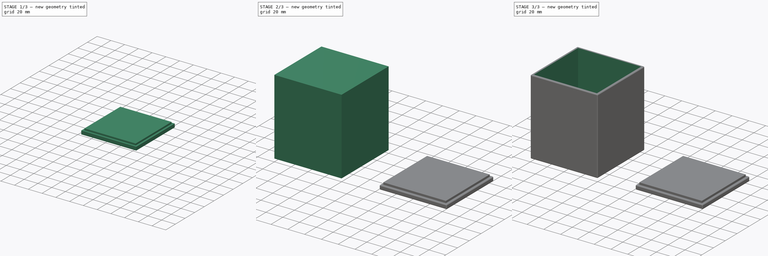
[diagram: build sequence overview — one tinted view per stage of 3, left to right]
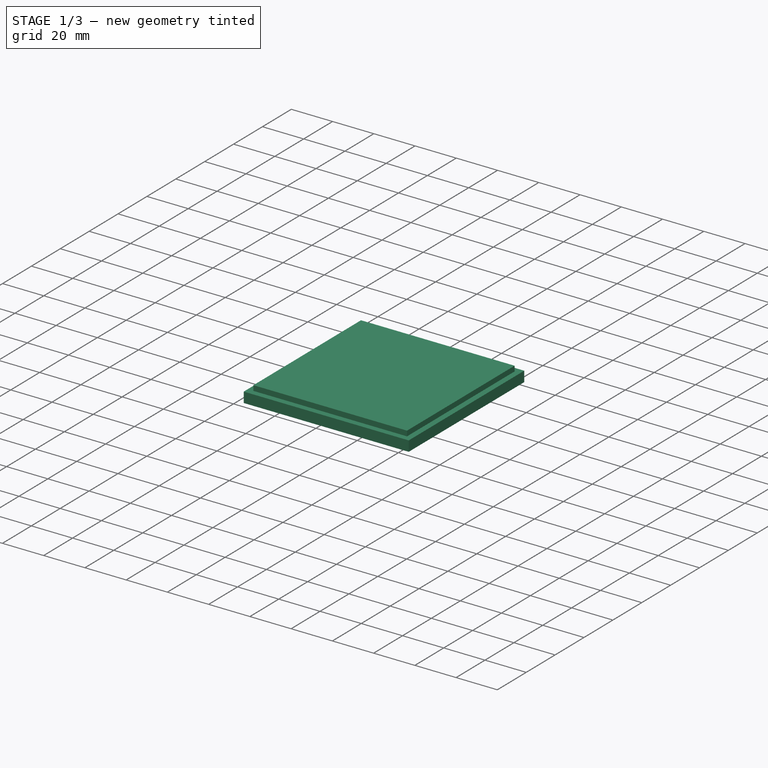
[diagram: stage 1 of 3 — iso view after this stage's code; geometry added in this stage tinted green]
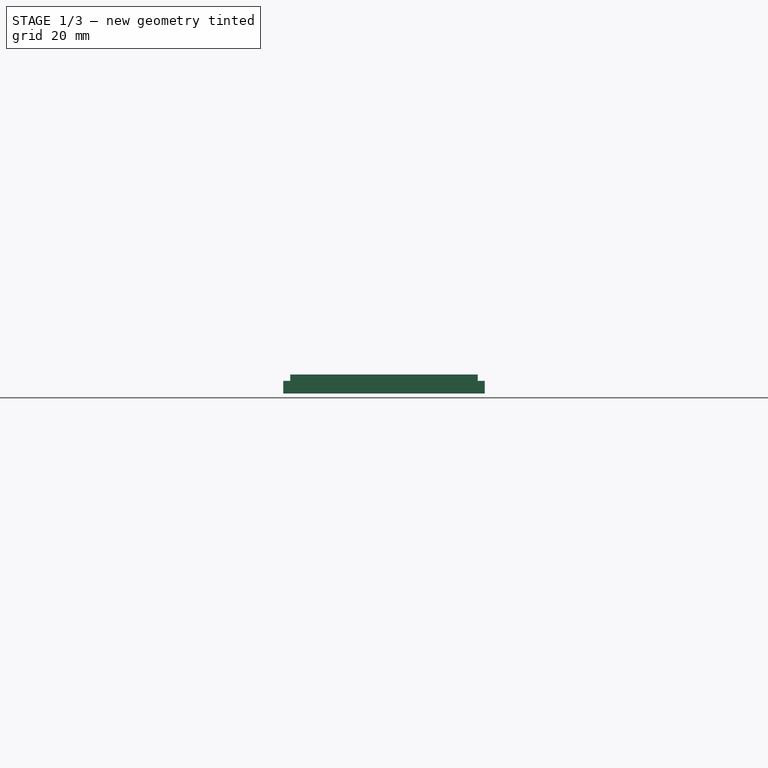
[diagram: stage 1 of 3 — front view after this stage's code; geometry added in this stage tinted green]
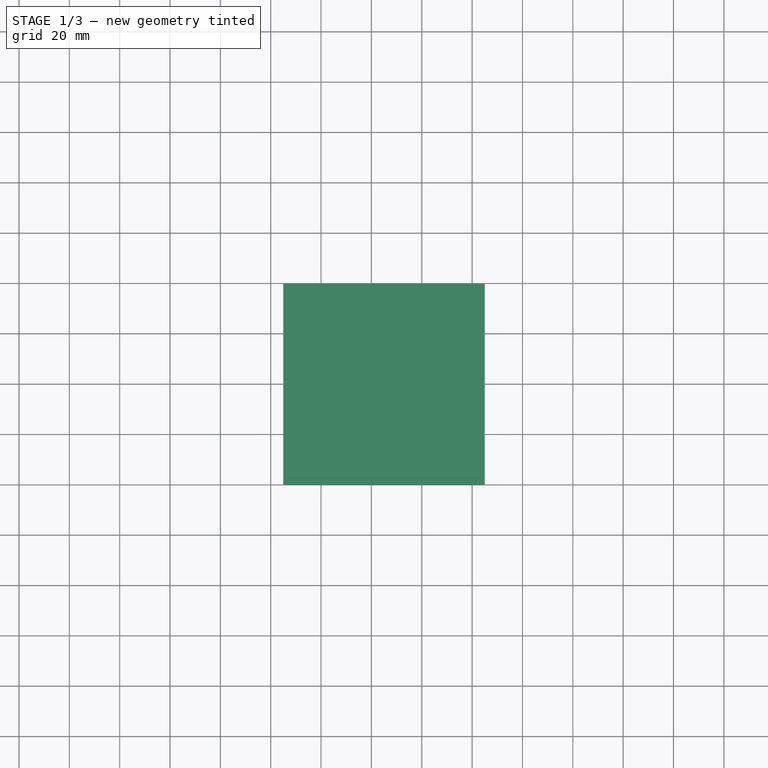
[diagram: stage 1 of 3 — top view after this stage's code; geometry added in this stage tinted green]
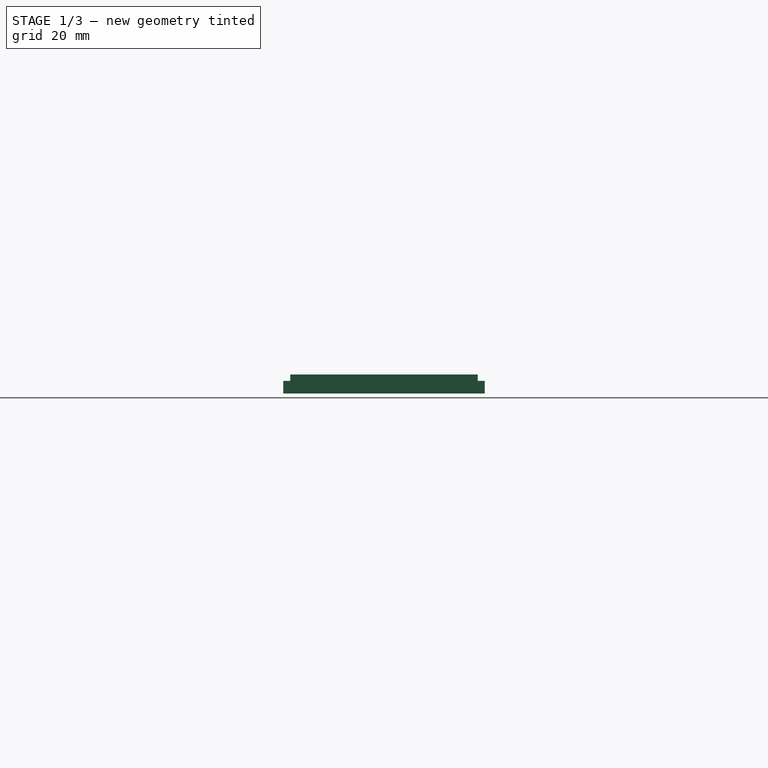
[diagram: stage 1 of 3 — right view after this stage's code; geometry added in this stage tinted green]
FCSTD DOCUMENT  (FreeCAD 1.0R39285 (Git))
Label: SnowGlobeBox
License: All rights reserved
LicenseURL: https://en.wikipedia.org/wiki/All_rights_reserved
objects: Sketcher::SketchObject×4, PartDesign::Pad×3, PartDesign::Fillet×2, PartDesign::Body×2, PartDesign::Pocket×1
note: 28 computed .brp shape members not serialized (recipe doc carries the construction recipe); baked Part::Feature solids carry a one-line shape summary decoded from their .brp

FEATURE [PartDesign::Body] Body  label="SGBBody"
  AllowCompound = false
  Group = -> [Sketch,Pad,Sketch001,Pocket,Fillet]
  Origin = -> Origin
  Tip = -> Fillet
FEATURE [Sketcher::SketchObject] Sketch002
  ArcFitTolerance = 1e-06
  AttachmentSupport = -> [XY_Plane001]
  FullyConstrained = true
  MakeInternals = false
  MapMode = 5
  sketch-geometry (5):
    g0: LineSegment StartX=85 StartY=40 StartZ=0 EndX=85 EndY=-40 EndZ=0
    g1: LineSegment StartX=85 StartY=-40 StartZ=0 EndX=165 EndY=-40 EndZ=0
    g2: LineSegment StartX=165 StartY=-40 StartZ=0 EndX=165 EndY=40 EndZ=0
    g3: LineSegment StartX=165 StartY=40 StartZ=0 EndX=85 EndY=40 EndZ=0
    g4: GeomPoint [constr] X=125 Y=0 Z=0
  constraints (13):
    c: Coincident(g0,g1)
    c: Coincident(g1,g2)
    c: Coincident(g2,g3)
    c: Coincident(g3,g0)
    c: Vertical(g0)
    c: Vertical(g2)
    c: Horizontal(g1)
    c: Horizontal(g3)
    c: Symmetric(g2,g0,g4)
    c: PointOnObject(g4,g-1)
    c: DistanceX(g3,g3) = 80
    c: DistanceY(g2,g2) = 80
    c: DistanceX(g-1,g4) = 125
FEATURE [PartDesign::Pad] Pad001
  Direction = (0,0,1)
  Length = 5
  Length2 = 10
  Profile = -> Sketch002
  ReferenceAxis = -> Sketch002 [N_Axis]
  Refine = true
  Suppressed = false
  Type = 0
FEATURE [Sketcher::SketchObject] Sketch003
  ArcFitTolerance = 1e-06
  AttachmentSupport = -> [Pad001]
  ExternalGeometry = -> [Pad001]
  FullyConstrained = true
  MakeInternals = false
  MapMode = 5
  Placement = pos=(0,0,5) rot=(0,0,1;0rad)
  sketch-geometry (5):
    g0: LineSegment StartX=87.75 StartY=37.25 StartZ=0 EndX=87.75 EndY=-37.25 EndZ=0
    g1: LineSegment StartX=87.75 StartY=-37.25 StartZ=0 EndX=162.25 EndY=-37.25 EndZ=0
    g2: LineSegment StartX=162.25 StartY=-37.25 StartZ=0 EndX=162.25 EndY=37.25 EndZ=0
    g3: LineSegment StartX=162.25 StartY=37.25 StartZ=0 EndX=87.75 EndY=37.25 EndZ=0
    g4: GeomPoint [constr] X=125 Y=-6.2e-15 Z=0
  constraints (13):
    c: Coincident(g0,g1)
    c: Coincident(g1,g2)
    c: Coincident(g2,g3)
    c: Coincident(g3,g0)
    c: Vertical(g0)
    c: Vertical(g2)
    c: Horizontal(g1)
    c: Horizontal(g3)
    c: Symmetric(g2,g0,g4)
    c: DistanceX(g-4,g0) = 2.75
    c: DistanceY(g0,g-4) = 2.75
    c: DistanceY(g-6,g1) = 2.75
    c: DistanceX(g1,g-6) = 2.75
FEATURE [PartDesign::Pad] Pad002
  BaseFeature = -> Pad001
  Direction = (0,0,1)
  Length = 2.5
  Length2 = 10
  Profile = -> Sketch003
  ReferenceAxis = -> Sketch003 [N_Axis]
  Refine = true
  Suppressed = false
  Type = 0
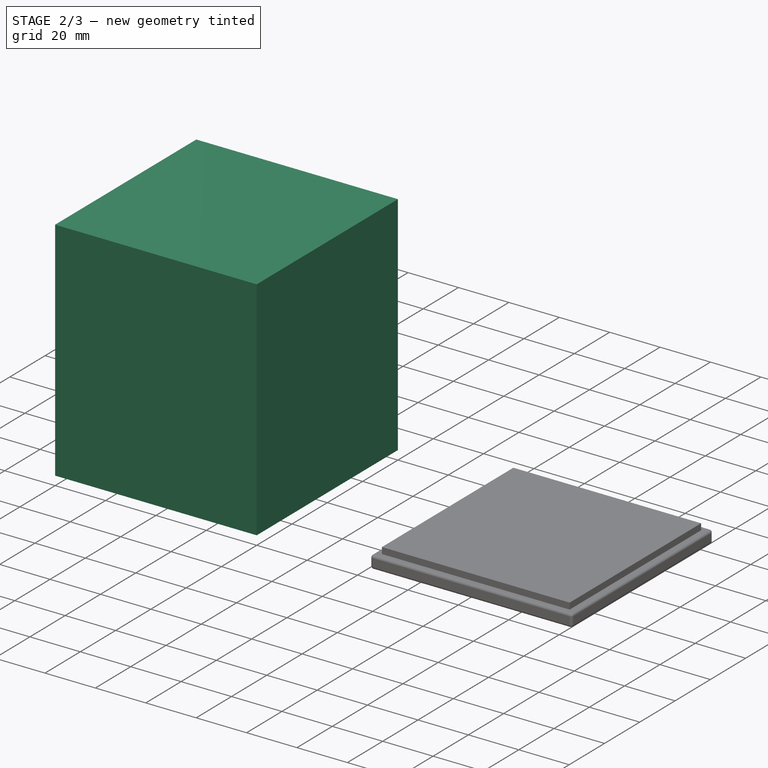
[diagram: stage 2 of 3 — iso view after this stage's code; geometry added in this stage tinted green]
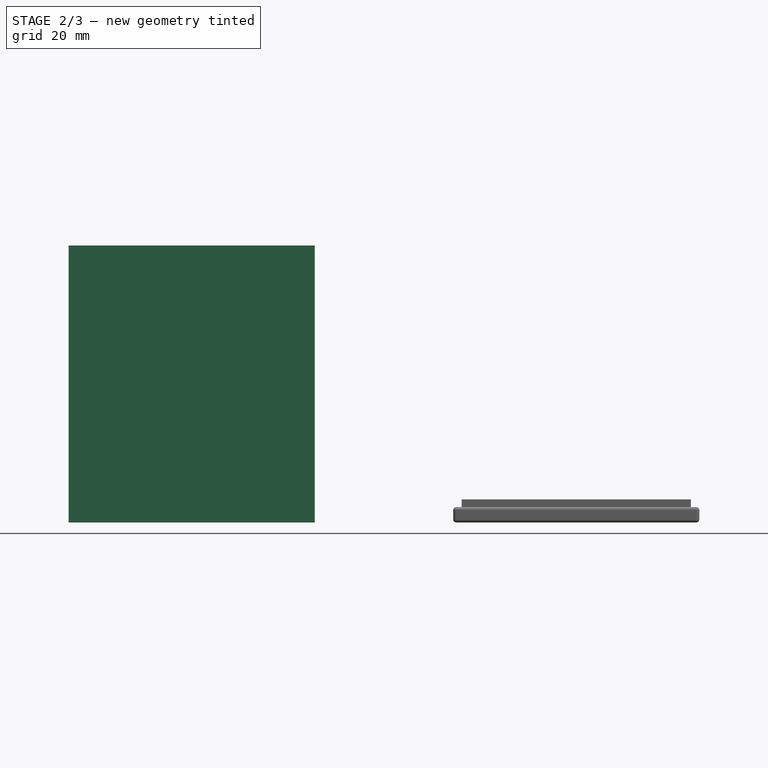
[diagram: stage 2 of 3 — front view after this stage's code; geometry added in this stage tinted green]
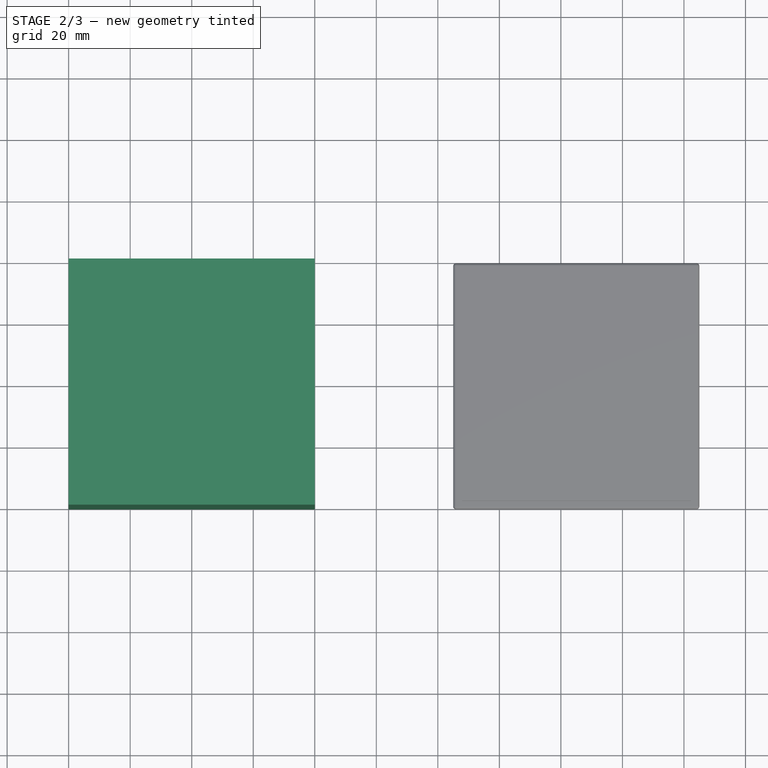
[diagram: stage 2 of 3 — top view after this stage's code; geometry added in this stage tinted green]
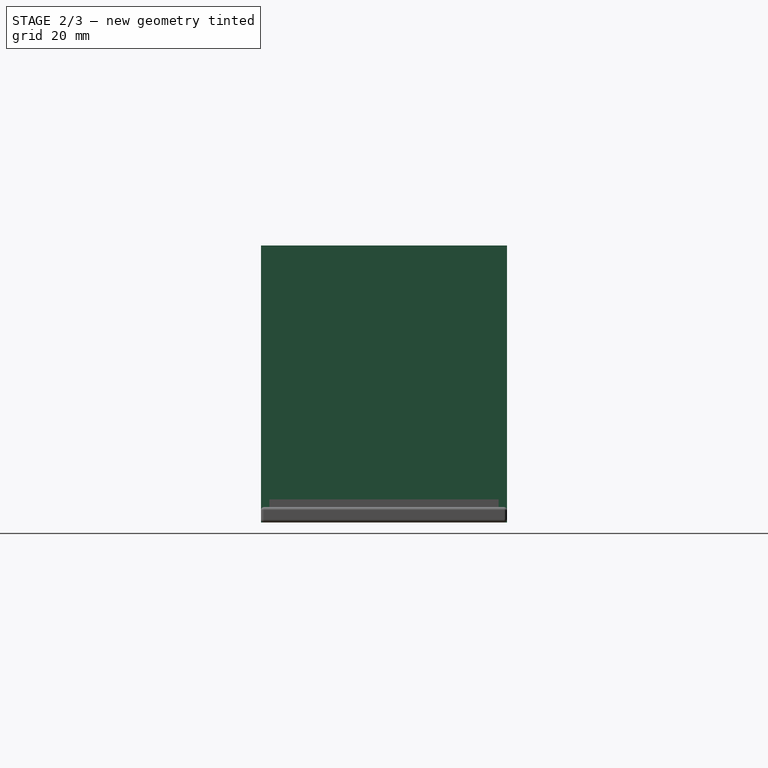
[diagram: stage 2 of 3 — right view after this stage's code; geometry added in this stage tinted green]
FEATURE [Sketcher::SketchObject] Sketch
  ArcFitTolerance = 1e-06
  AttachmentSupport = -> [XY_Plane]
  FullyConstrained = true
  MakeInternals = false
  MapMode = 5
  sketch-geometry (5):
    g0: LineSegment StartX=-40 StartY=40 StartZ=0 EndX=-40 EndY=-40 EndZ=0
    g1: LineSegment StartX=-40 StartY=-40 StartZ=0 EndX=40 EndY=-40 EndZ=0
    g2: LineSegment StartX=40 StartY=-40 StartZ=0 EndX=40 EndY=40 EndZ=0
    g3: LineSegment StartX=40 StartY=40 StartZ=0 EndX=-40 EndY=40 EndZ=0
    g4: GeomPoint [constr] X=-3e-16 Y=-5e-16 Z=0
  constraints (12):
    c: Coincident(g0,g1)
    c: Coincident(g1,g2)
    c: Coincident(g2,g3)
    c: Coincident(g3,g0)
    c: Vertical(g0)
    c: Vertical(g2)
    c: Horizontal(g1)
    c: Horizontal(g3)
    c: Symmetric(g2,g0,g4)
    c: Coincident(g4,g-1)
    c: DistanceX(g3,g3) = 80
    c: DistanceY(g2,g2) = 80
FEATURE [PartDesign::Pad] Pad
  Direction = (0,0,1)
  Length = 90
  Length2 = 10
  Profile = -> Sketch
  ReferenceAxis = -> Sketch [N_Axis]
  Refine = true
  Suppressed = false
  Type = 0
FEATURE [PartDesign::Fillet] Fillet001
  Base = -> Pad002 [Edge10,Edge4,Edge12,Edge2,Edge9,Edge8,Edge11,Edge5,Edge7,Edge6,Edge1,Edge3]
  BaseFeature = -> Pad002
  Radius = 1
  Refine = true
  SupportTransform = false
  Suppressed = false
  UseAllEdges = false
FEATURE [PartDesign::Body] Body001  label="SGBTop"
  AllowCompound = false
  Group = -> [Sketch002,Pad001,Sketch003,Pad002,Fillet001]
  Origin = -> Origin001
  Tip = -> Fillet001
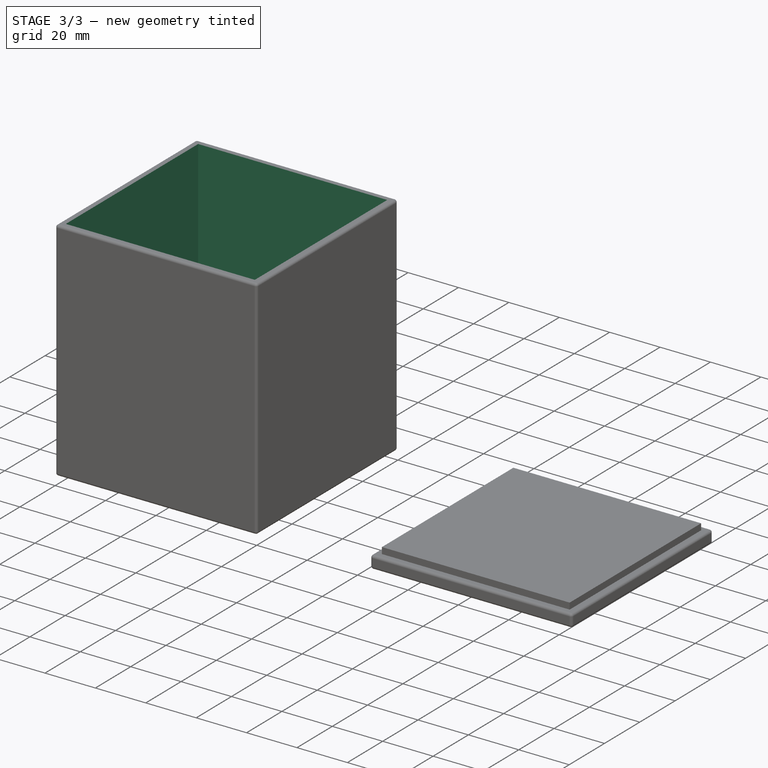
[diagram: stage 3 of 3 — iso view after this stage's code; geometry added in this stage tinted green]
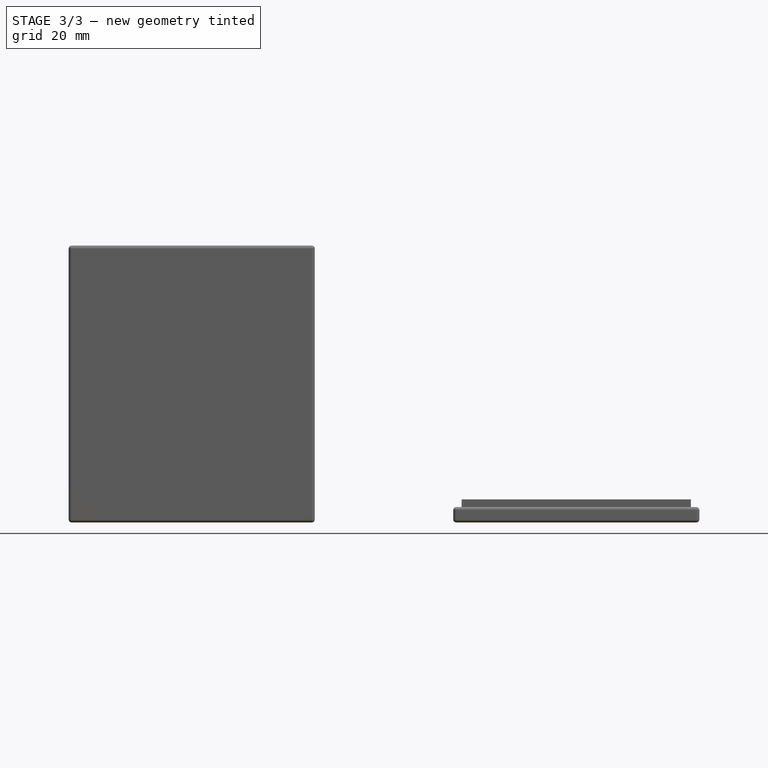
[diagram: stage 3 of 3 — front view after this stage's code; geometry added in this stage tinted green]
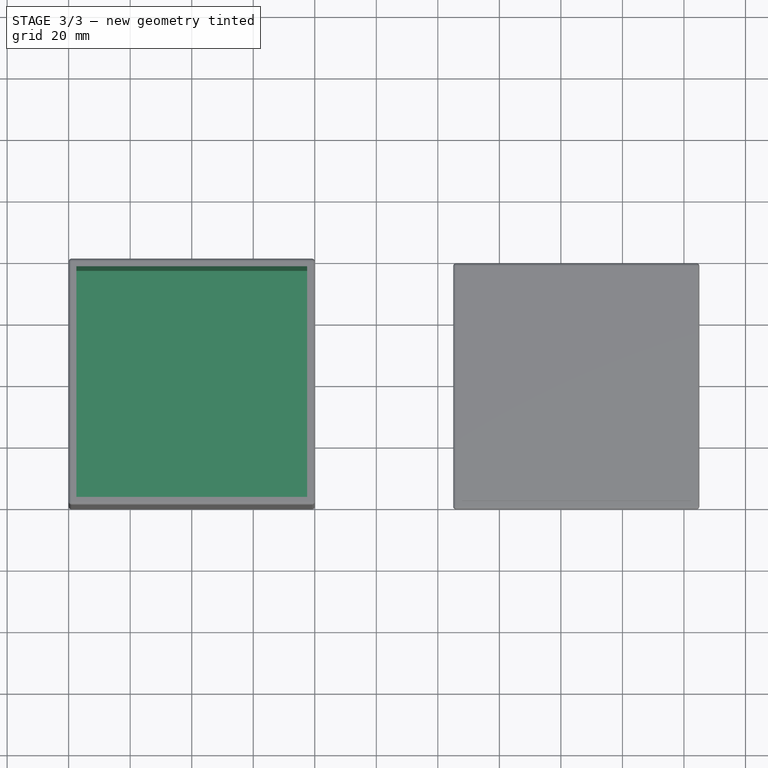
[diagram: stage 3 of 3 — top view after this stage's code; geometry added in this stage tinted green]
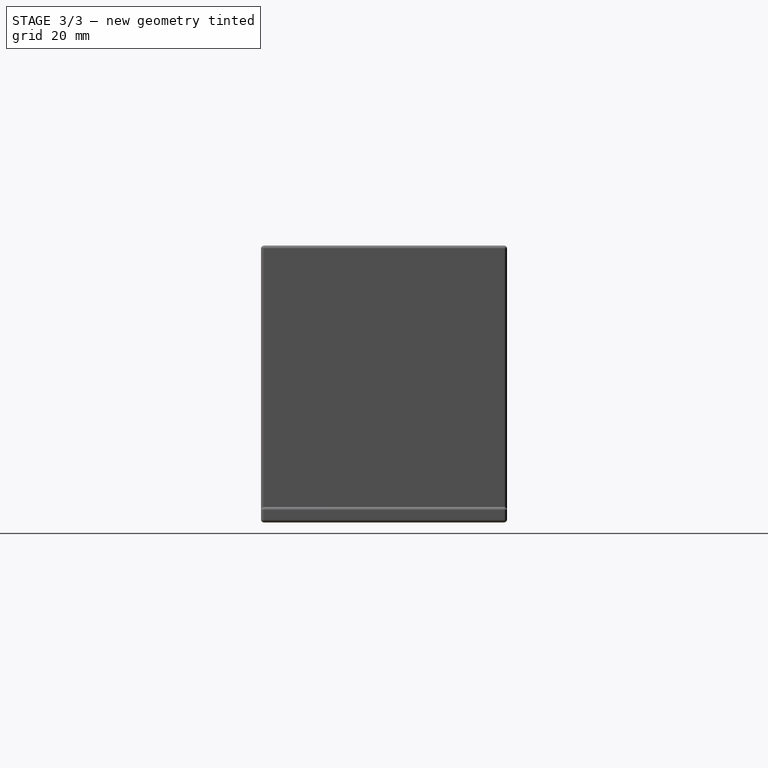
[diagram: stage 3 of 3 — right view after this stage's code; geometry added in this stage tinted green]
FEATURE [Sketcher::SketchObject] Sketch001
  ArcFitTolerance = 1e-06
  AttachmentSupport = -> [Pad]
  FullyConstrained = true
  MakeInternals = false
  MapMode = 5
  Placement = pos=(0,0,90) rot=(0,0,1;0rad)
  sketch-geometry (5):
    g0: LineSegment StartX=-37.5 StartY=37.5 StartZ=0 EndX=-37.5 EndY=-37.5 EndZ=0
    g1: LineSegment StartX=-37.5 StartY=-37.5 StartZ=0 EndX=37.5 EndY=-37.5 EndZ=0
    g2: LineSegment StartX=37.5 StartY=-37.5 StartZ=0 EndX=37.5 EndY=37.5 EndZ=0
    g3: LineSegment StartX=37.5 StartY=37.5 StartZ=0 EndX=-37.5 EndY=37.5 EndZ=0
    g4: GeomPoint [constr] X=0 Y=0 Z=0
  constraints (12):
    c: Coincident(g0,g1)
    c: Coincident(g1,g2)
    c: Coincident(g2,g3)
    c: Coincident(g3,g0)
    c: Vertical(g0)
    c: Vertical(g2)
    c: Horizontal(g1)
    c: Horizontal(g3)
    c: Symmetric(g2,g0,g4)
    c: Coincident(g4,g-1)
    c: DistanceX(g3,g3) = 75
    c: DistanceY(g2,g2) = 75
FEATURE [PartDesign::Pocket] Pocket
  BaseFeature = -> Pad
  Direction = (0,0,-1)
  Length = 87.5
  Length2 = 5
  Profile = -> Sketch001
  ReferenceAxis = -> Sketch001 [N_Axis]
  Refine = true
  Suppressed = false
  Type = 0
FEATURE [PartDesign::Fillet] Fillet
  Base = -> Pocket [Edge2,Edge8,Edge5,Edge1,Edge9,Edge3,Edge11,Edge6,Edge4,Edge10,Edge12,Edge7]
  BaseFeature = -> Pocket
  Radius = 1
  Refine = true
  SupportTransform = false
  Suppressed = false
  UseAllEdges = false
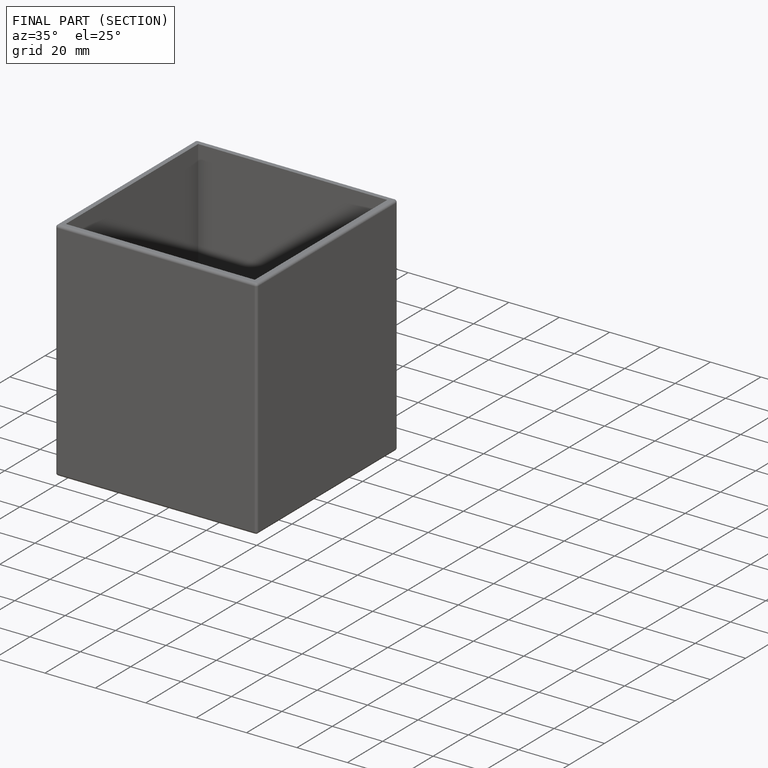
[diagram: finished part — half-section view (interior)]
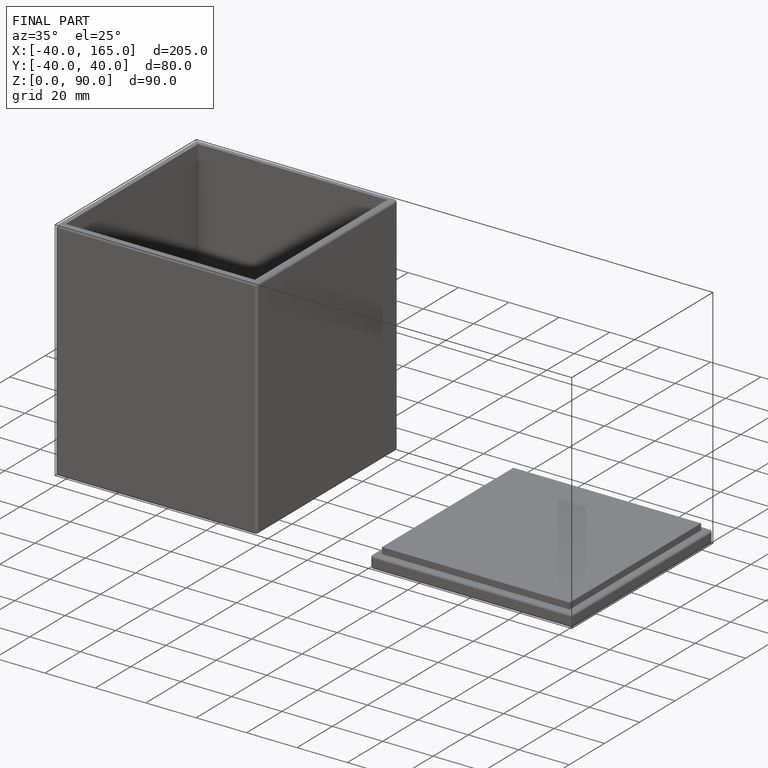
[diagram: finished part — iso view with bounding-box wireframe]
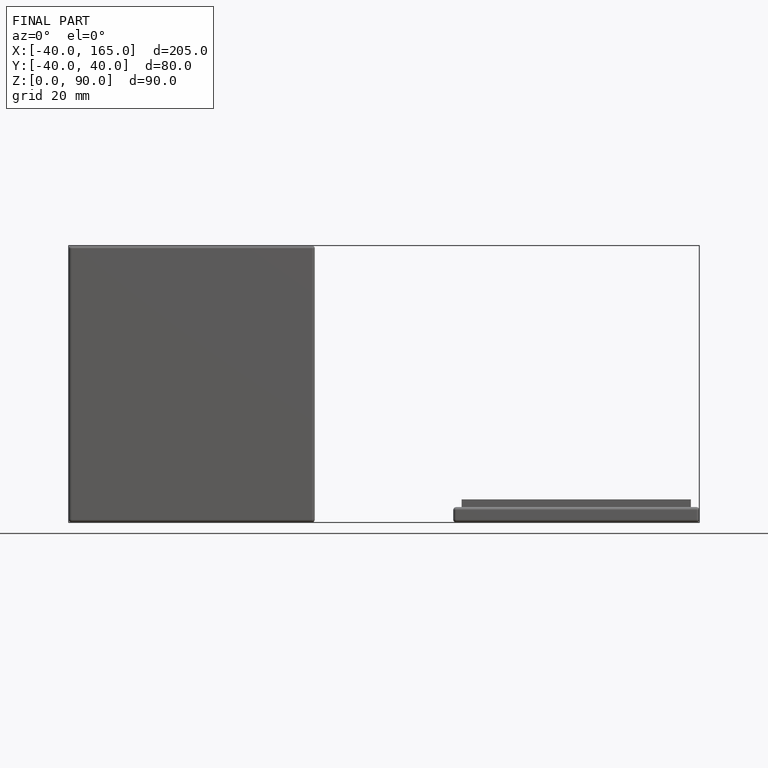
[diagram: finished part — front view with bounding-box wireframe]
